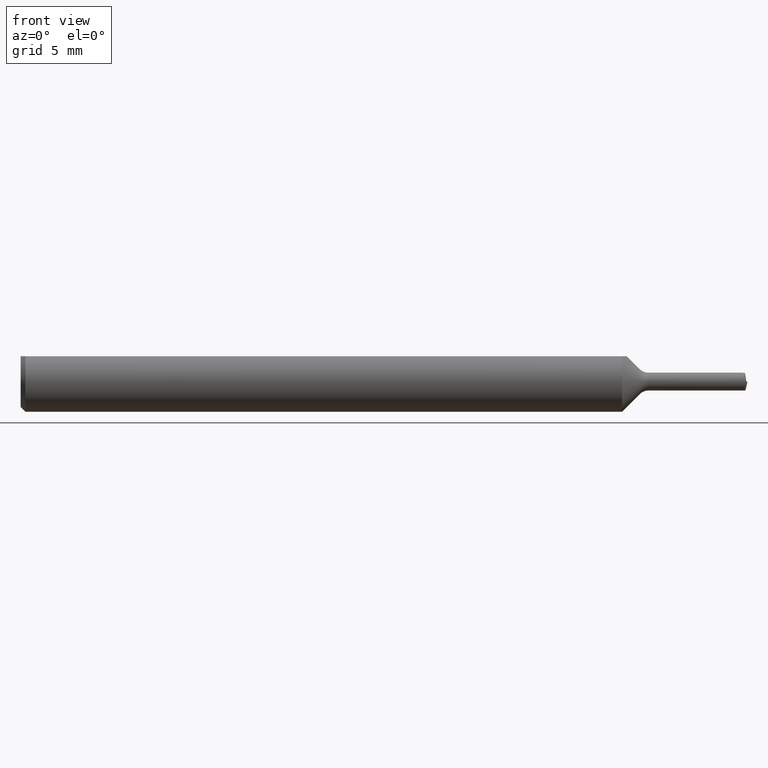
[diagram: clean part render]
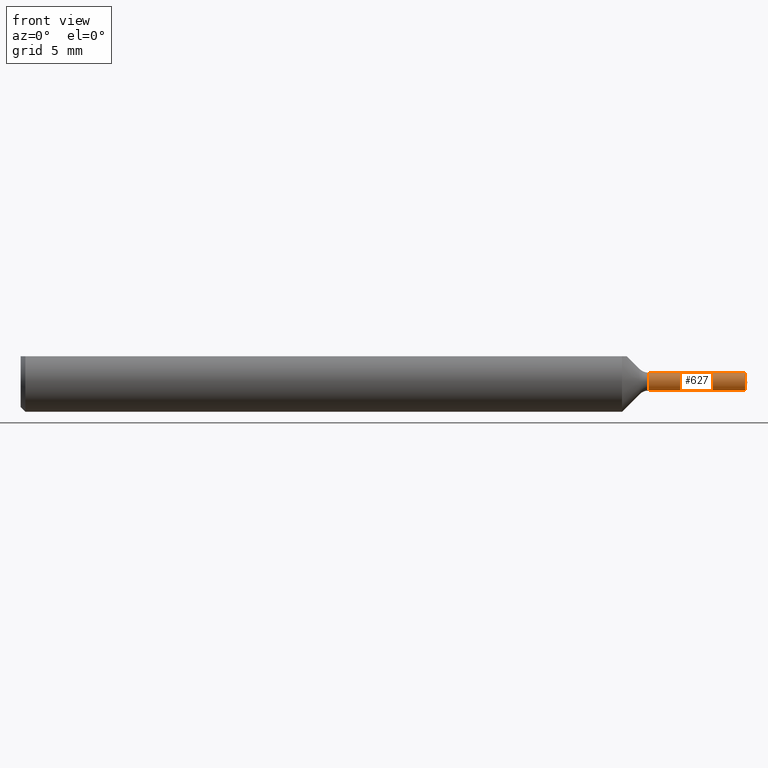
[diagram: same view with one face highlighted and labeled with its STEP entity id]
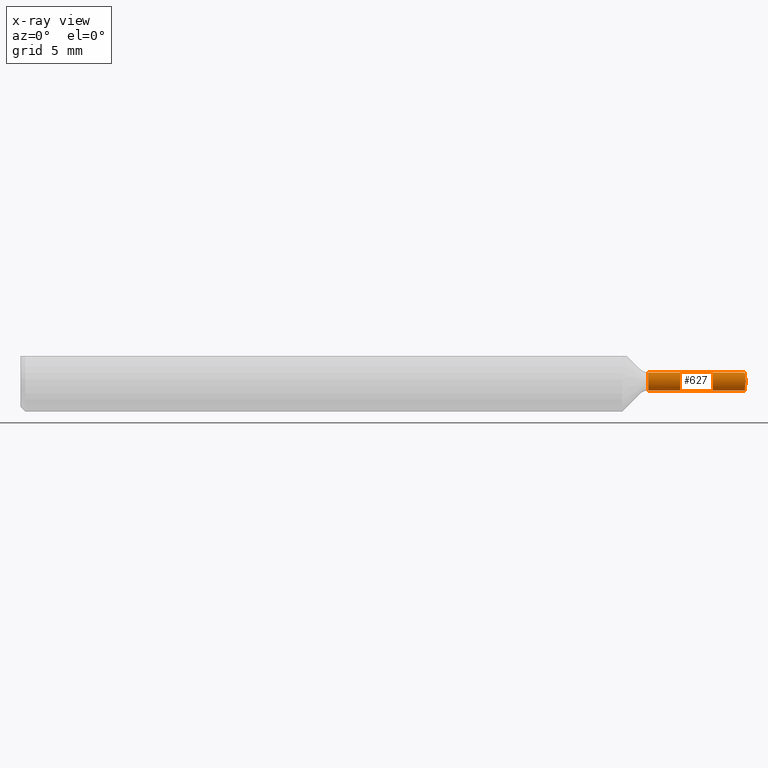
[diagram: x-ray of the same camera — body ghosted, the highlighted face saturated]
A machine part, front view. The second image highlights one B-rep face of the part: STEP entity #627.
The next image is the same camera in x-ray: the body ghosted, the highlighted face saturated — about 0% of this face is hidden behind the body in this view.
In plain terms, the highlighted cylindrical surface (edge-blend (fillet) strip) has radius 0.4699 mm, axis along (-1, -0, -0).
Its self-contained STEP definition (entity closure, byte-faithful):
#24 = CARTESIAN_POINT ( 'NONE',  ( 1.295355339059327315, 2.265596578422605350E-18, -0.01850000000000001643 ) ) ;
#27 = CARTESIAN_POINT ( 'NONE',  ( 1.491015288325890253, -0.002751962849509067850, 0.01834616788330073814 ) ) ;
#39 = AXIS2_PLACEMENT_3D ( 'NONE', #561, #113, #466 ) ;
#49 = DIRECTION ( 'NONE',  ( 0.000000000000000000, 0.000000000000000000, 1.000000000000000000 ) ) ;
#53 = CARTESIAN_POINT ( 'NONE',  ( 1.495246590703220857, 2.265596578422604194E-18, -0.01850000000000000602 ) ) ;
#57 = CYLINDRICAL_SURFACE ( 'NONE', #39, 0.01850000000000000602 ) ;
#58 = CIRCLE ( 'NONE', #448, 0.01850000000000001296 ) ;
#72 = DIRECTION ( 'NONE',  ( -1.000000000000000000, -0.000000000000000000, -0.000000000000000000 ) ) ;
#85 = CARTESIAN_POINT ( 'NONE',  ( 1.494952902551172302, -0.004097954674002866546, 0.01804042038007480295 ) ) ;
#106 = VERTEX_POINT ( 'NONE', #610 ) ;
#113 = DIRECTION ( 'NONE',  ( -1.000000000000000000, -0.000000000000000000, -0.000000000000000000 ) ) ;
#120 = ORIENTED_EDGE ( 'NONE', *, *, #619, .T. ) ;
#142 =( BOUNDED_CURVE ( )  B_SPLINE_CURVE ( 3, ( #53, #456, #598, #354 ),
 .UNSPECIFIED., .F., .F. ) 
 B_SPLINE_CURVE_WITH_KNOTS ( ( 4, 4 ),
 ( 5.728084607564618125, 7.298880934359528894 ),
 .UNSPECIFIED. ) 
 CURVE ( )  GEOMETRIC_REPRESENTATION_ITEM ( )  RATIONAL_B_SPLINE_CURVE ( ( 1.000000000000000000, 0.8047378541243617178, 0.8047378541243617178, 1.000000000000000000 ) ) 
 REPRESENTATION_ITEM ( '' )  );
#171 = VECTOR ( 'NONE', #605, 39.37007874015748143 ) ;
#195 = CARTESIAN_POINT ( 'NONE',  ( 1.496237987468385322, -0.01849999999999996439, 2.732599657287118718E-16 ) ) ;
#196 = VERTEX_POINT ( 'NONE', #24 ) ;
#210 = CARTESIAN_POINT ( 'NONE',  ( 1.295355339059327315, 0.000000000000000000, 0.000000000000000000 ) ) ;
#234 = CARTESIAN_POINT ( 'NONE',  ( 1.487126106453287244, -0.001380280959563398363, 0.01850000000000000949 ) ) ;
#239 = ORIENTED_EDGE ( 'NONE', *, *, #585, .F. ) ;
#240 = EDGE_CURVE ( 'NONE', #106, #401, #317, .T. ) ;
#243 = VECTOR ( 'NONE', #72, 39.37007874015748143 ) ;
#266 = CARTESIAN_POINT ( 'NONE',  ( 0.000000000000000000, 0.000000000000000000, 0.01850000000000000602 ) ) ;
#270 = CARTESIAN_POINT ( 'NONE',  ( 1.295355339059327315, 0.000000000000000000, 0.01850000000000001296 ) ) ;
#289 = CARTESIAN_POINT ( 'NONE',  ( 1.494465960141844851, -0.01288082332125570564, 0.01604535613734157928 ) ) ;
#290 = ORIENTED_EDGE ( 'NONE', *, *, #645, .T. ) ;
#296 = CARTESIAN_POINT ( 'NONE',  ( 1.496237987468385322, -0.01849999999999996439, 2.732599657287118718E-16 ) ) ;
#306 = ORIENTED_EDGE ( 'NONE', *, *, #430, .F. ) ;
#317 =( BOUNDED_CURVE ( )  B_SPLINE_CURVE ( 3, ( #85, #289, #479, #195 ),
 .UNSPECIFIED., .F., .F. ) 
 B_SPLINE_CURVE_WITH_KNOTS ( ( 4, 4 ),
 ( 5.951448363857583246, 7.298880934359464945 ),
 .UNSPECIFIED. ) 
 CURVE ( )  GEOMETRIC_REPRESENTATION_ITEM ( )  RATIONAL_B_SPLINE_CURVE ( ( 1.000000000000000000, 0.8543389983611022753, 0.8543389983611022753, 1.000000000000000000 ) ) 
 REPRESENTATION_ITEM ( '' )  );
#319 = CARTESIAN_POINT ( 'NONE',  ( 0.000000000000000000, 2.265596578422604194E-18, -0.01850000000000000602 ) ) ;
#324 = CARTESIAN_POINT ( 'NONE',  ( 1.483333815684383605, 0.000000000000000000, 0.01850000000000000602 ) ) ;
#326 = EDGE_LOOP ( 'NONE', ( #239, #631, #594, #290, #120, #306 ) ) ;
#337 = CARTESIAN_POINT ( 'NONE',  ( 1.494952902551172302, -0.004097954674002866546, 0.01804042038007480295 ) ) ;
#351 = DIRECTION ( 'NONE',  ( -1.000000000000000000, -0.000000000000000000, -0.000000000000000000 ) ) ;
#354 = CARTESIAN_POINT ( 'NONE',  ( 1.496237987468385322, -0.01849999999999996439, 2.732599657287118718E-16 ) ) ;
#365 = VERTEX_POINT ( 'NONE', #591 ) ;
#401 = VERTEX_POINT ( 'NONE', #296 ) ;
#430 = EDGE_CURVE ( 'NONE', #196, #530, #58, .T. ) ;
#448 = AXIS2_PLACEMENT_3D ( 'NONE', #210, #351, #49 ) ;
#451 = EDGE_CURVE ( 'NONE', #365, #401, #142, .T. ) ;
#456 = CARTESIAN_POINT ( 'NONE',  ( 1.494298471761238201, -0.01083704909609784980, -0.01850000000000001643 ) ) ;
#466 = DIRECTION ( 'NONE',  ( 0.000000000000000000, 0.000000000000000000, 1.000000000000000000 ) ) ;
#476 = FACE_OUTER_BOUND ( 'NONE', #326, .T. ) ;
#478 =( BOUNDED_CURVE ( )  B_SPLINE_CURVE ( 3, ( #337, #27, #234, #484 ),
 .UNSPECIFIED., .F., .F. ) 
 B_SPLINE_CURVE_WITH_KNOTS ( ( 4, 4 ),
 ( 4.766799014753298813, 4.990162771046300350 ),
 .UNSPECIFIED. ) 
 CURVE ( )  GEOMETRIC_REPRESENTATION_ITEM ( )  RATIONAL_B_SPLINE_CURVE ( ( 1.000000000000000000, 0.9958467056734143785, 0.9958467056734143785, 1.000000000000000000 ) ) 
 REPRESENTATION_ITEM ( '' )  );
#479 = CARTESIAN_POINT ( 'NONE',  ( 1.494967355536287013, -0.01849999999999990541, 0.009006612182587492646 ) ) ;
#484 = CARTESIAN_POINT ( 'NONE',  ( 1.483333815684383605, 0.000000000000000000, 0.01850000000000000602 ) ) ;
#512 = VERTEX_POINT ( 'NONE', #324 ) ;
#524 = LINE ( 'NONE', #266, #243 ) ;
#530 = VERTEX_POINT ( 'NONE', #270 ) ;
#561 = CARTESIAN_POINT ( 'NONE',  ( 0.000000000000000000, 0.000000000000000000, 0.000000000000000000 ) ) ;
#585 = EDGE_CURVE ( 'NONE', #365, #196, #608, .T. ) ;
#591 = CARTESIAN_POINT ( 'NONE',  ( 1.495246590703220857, 2.265596578422604194E-18, -0.01850000000000000602 ) ) ;
#594 = ORIENTED_EDGE ( 'NONE', *, *, #240, .F. ) ;
#598 = CARTESIAN_POINT ( 'NONE',  ( 1.494709121747062719, -0.01850000000000015521, -0.01083704909609761909 ) ) ;
#605 = DIRECTION ( 'NONE',  ( -1.000000000000000000, -0.000000000000000000, -0.000000000000000000 ) ) ;
#608 = LINE ( 'NONE', #319, #171 ) ;
#610 = CARTESIAN_POINT ( 'NONE',  ( 1.494952902551172302, -0.004097954674002866546, 0.01804042038007480295 ) ) ;
#619 = EDGE_CURVE ( 'NONE', #512, #530, #524, .T. ) ;
#627 = ADVANCED_FACE ( 'NONE', ( #476 ), #57, .T. ) ;
#631 = ORIENTED_EDGE ( 'NONE', *, *, #451, .T. ) ;
#645 = EDGE_CURVE ( 'NONE', #106, #512, #478, .T. ) ;